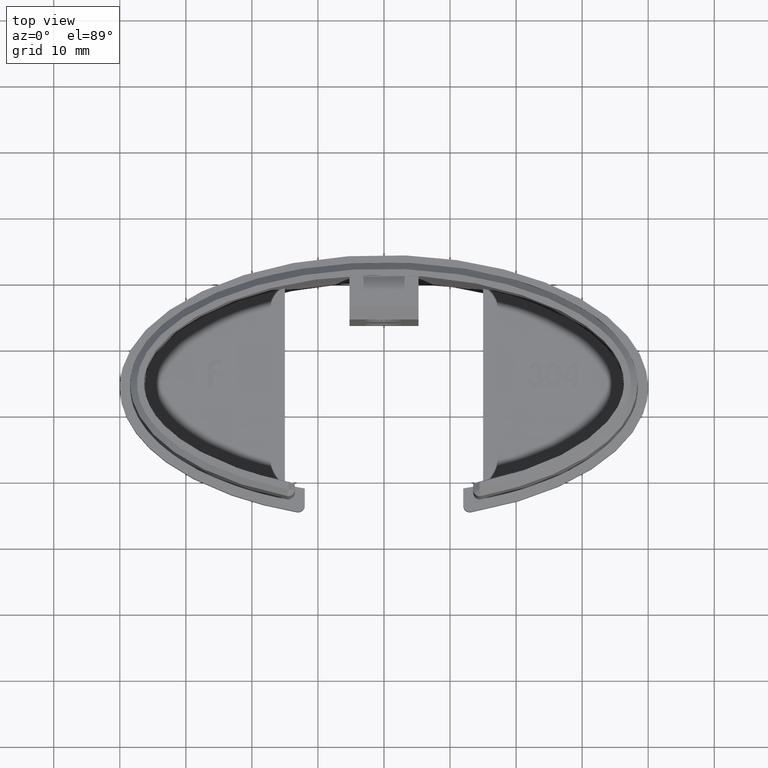
[diagram: clean part render]
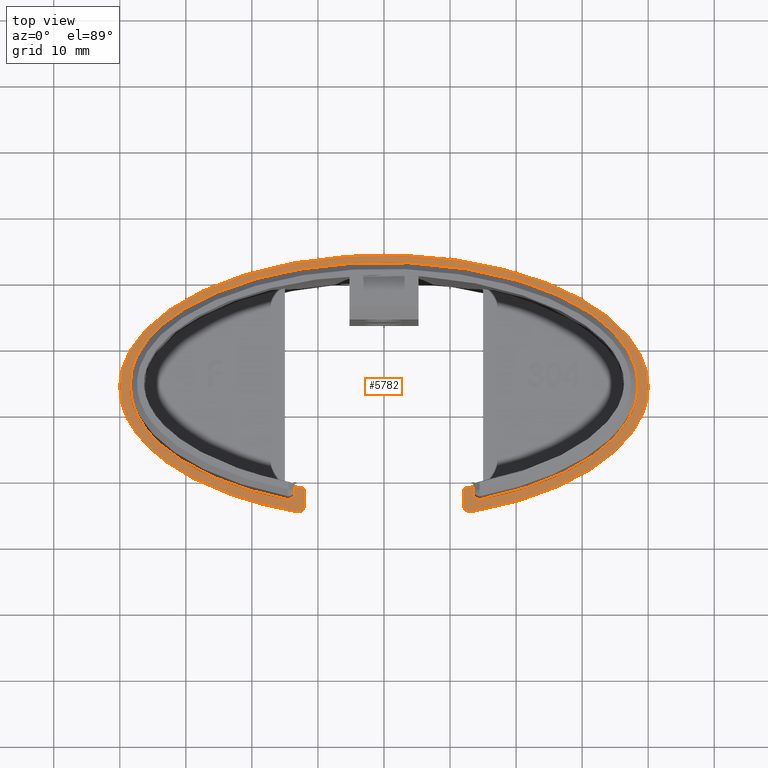
[diagram: same view with one face highlighted and labeled with its STEP entity id]
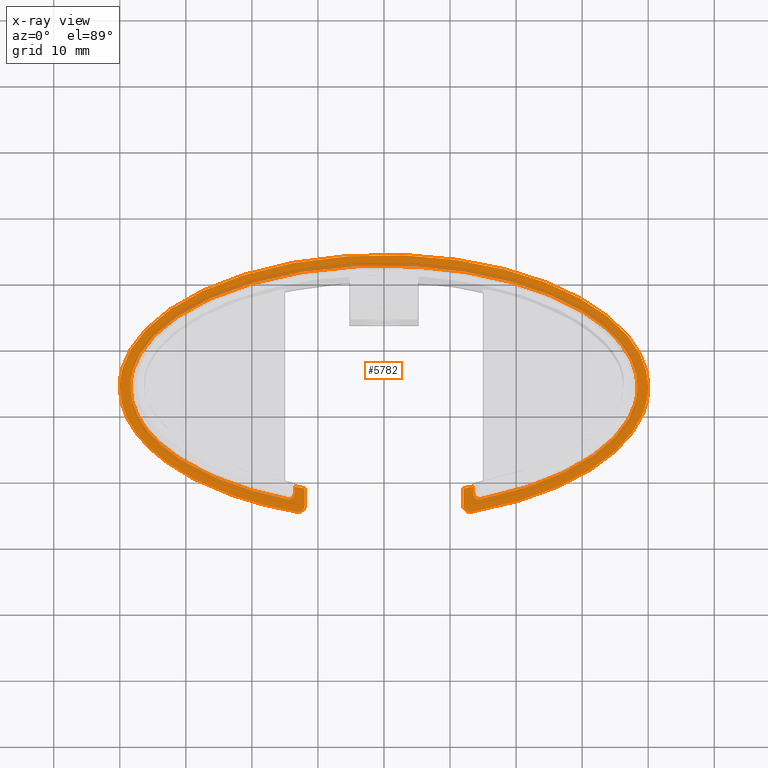
[diagram: x-ray of the same camera — body ghosted, the highlighted face saturated]
A machine part, top view. The second image highlights one B-rep face of the part: STEP entity #5782.
The next image is the same camera in x-ray: the body ghosted, the highlighted face saturated — about 15% of this face is hidden behind the body in this view.
In plain terms, the highlighted planar face has unit normal (0, 0, 1).
Its self-contained STEP definition (entity closure, byte-faithful):
#55 = ORIENTED_EDGE ( 'NONE', *, *, #288, .F. ) ;
#199 = VECTOR ( 'NONE', #26029, 1000.000000000000000 ) ;
#209 = VERTEX_POINT ( 'NONE', #10542 ) ;
#288 = EDGE_CURVE ( 'NONE', #209, #13076, #18841, .T. ) ;
#326 = CARTESIAN_POINT ( 'NONE',  ( 14.50000000000000711, -22.11917878559854955, 2.999999999999999112 ) ) ;
#363 = CARTESIAN_POINT ( 'NONE',  ( -11.99999999999999112, -24.00000000000000355, 3.000000000000000000 ) ) ;
#624 = CARTESIAN_POINT ( 'NONE',  ( 13.00000000000015454, -24.00000000000000000, 3.000000000000000000 ) ) ;
#732 = CIRCLE ( 'NONE', #20151, 1.000000000000148326 ) ;
#850 = LINE ( 'NONE', #25780, #199 ) ;
#890 = CARTESIAN_POINT ( 'NONE',  ( 29.80116491168281456, -22.08542813419998296, 3.000000000000000000 ) ) ;
#980 = CIRCLE ( 'NONE', #17990, 1.000000000000148326 ) ;
#999 = EDGE_CURVE ( 'NONE', #19618, #20914, #5347, .T. ) ;
#1694 = CARTESIAN_POINT ( 'NONE',  ( -14.50000000000002132, -22.11917878559854955, 2.999999999999999112 ) ) ;
#1988 = EDGE_CURVE ( 'NONE', #5382, #24176, #8672, .T. ) ;
#1989 = CARTESIAN_POINT ( 'NONE',  ( 38.40000000000000568, -6.100589991148868130, 3.000000000000000000 ) ) ;
#2126 = LINE ( 'NONE', #19622, #17185 ) ;
#2283 = VERTEX_POINT ( 'NONE', #18656 ) ;
#2328 = LINE ( 'NONE', #24012, #10411 ) ;
#2567 = CARTESIAN_POINT ( 'NONE',  ( 40.00000000000000000, -14.90640670414434332, 3.000000000000000000 ) ) ;
#2594 = VECTOR ( 'NONE', #9758, 1000.000000000000000 ) ;
#2993 = DIRECTION ( 'NONE',  ( 0.000000000000000000, 0.000000000000000000, 1.000000000000000000 ) ) ;
#3374 = ORIENTED_EDGE ( 'NONE', *, *, #16712, .T. ) ;
#3731 = CARTESIAN_POINT ( 'NONE',  ( 38.39999999999999858, 30.69941000885112459, 3.000000000000000444 ) ) ;
#3882 = ORIENTED_EDGE ( 'NONE', *, *, #21840, .F. ) ;
#4313 = ORIENTED_EDGE ( 'NONE', *, *, #12327, .T. ) ;
#4362 = CARTESIAN_POINT ( 'NONE',  ( 13.50000000000000178, -21.18682985904735006, 3.000000000000000000 ) ) ;
#4481 = CIRCLE ( 'NONE', #9079, 0.9999999999999991118 ) ;
#4732 = ORIENTED_EDGE ( 'NONE', *, *, #20004, .T. ) ;
#4978 = ORIENTED_EDGE ( 'NONE', *, *, #1988, .T. ) ;
#5093 = VERTEX_POINT ( 'NONE', #18358 ) ;
#5308 = CARTESIAN_POINT ( 'NONE',  ( -13.49999999999999822, -21.18682985904737137, 3.000000000000000000 ) ) ;
#5347 =( BOUNDED_CURVE ( )  B_SPLINE_CURVE ( 3, ( #1989, #3731, #16010, #18054 ),
 .UNSPECIFIED., .F., .F. ) 
 B_SPLINE_CURVE_WITH_KNOTS ( ( 4, 4 ),
 ( 4.186804226928773713E-32, 3.141592653589793116 ),
 .UNSPECIFIED. ) 
 CURVE ( )  GEOMETRIC_REPRESENTATION_ITEM ( )  RATIONAL_B_SPLINE_CURVE ( ( 1.000000000000000000, 0.3333333333333333703, 0.3333333333333333703, 1.000000000000000000 ) ) 
 REPRESENTATION_ITEM ( '' )  );
#5382 = VERTEX_POINT ( 'NONE', #14693 ) ;
#5782 = ADVANCED_FACE ( 'NONE', ( #23906 ), #20549, .T. ) ;
#5895 = CARTESIAN_POINT ( 'NONE',  ( -14.69467431645661648, -23.10004672294391881, 3.000000000000000000 ) ) ;
#6035 = DIRECTION ( 'NONE',  ( 1.000000000000000000, 0.000000000000000000, 0.000000000000000000 ) ) ;
#6247 = EDGE_LOOP ( 'NONE', ( #55, #7979, #17743, #4978, #8339, #4313, #4732, #26021, #16839, #7424, #3374, #25788, #23664, #3882, #12767, #10042 ) ) ;
#6456 = CARTESIAN_POINT ( 'NONE',  ( -11.99999999999999112, -21.44748970597751736, 3.000000000000000000 ) ) ;
#6836 = CARTESIAN_POINT ( 'NONE',  ( 12.00000000000000533, -21.44748970602631033, 3.000000000000000000 ) ) ;
#7078 = CARTESIAN_POINT ( 'NONE',  ( 12.49620549681277737, -21.36739941547843102, 2.999999999999999112 ) ) ;
#7306 = CARTESIAN_POINT ( 'NONE',  ( -12.99772371624742462, -21.28022930408711488, 2.999999999999999112 ) ) ;
#7424 = ORIENTED_EDGE ( 'NONE', *, *, #11426, .T. ) ;
#7783 = VERTEX_POINT ( 'NONE', #11959 ) ;
#7802 = EDGE_CURVE ( 'NONE', #20914, #2283, #23253, .T. ) ;
#7853 = LINE ( 'NONE', #21844, #2594 ) ;
#7959 = DIRECTION ( 'NONE',  ( 2.891205793294678326E-16, -1.000000000000000000, 0.000000000000000000 ) ) ;
#7979 = ORIENTED_EDGE ( 'NONE', *, *, #9703, .T. ) ;
#8285 = VERTEX_POINT ( 'NONE', #363 ) ;
#8339 = ORIENTED_EDGE ( 'NONE', *, *, #11980, .T. ) ;
#8672 =( BOUNDED_CURVE ( )  B_SPLINE_CURVE ( 3, ( #16680, #890, #2567, #16771 ),
 .UNSPECIFIED., .F., .F. ) 
 B_SPLINE_CURVE_WITH_KNOTS ( ( 4, 4 ),
 ( 5.047945299094942051, 6.283185307179586232 ),
 .UNSPECIFIED. ) 
 CURVE ( )  GEOMETRIC_REPRESENTATION_ITEM ( )  RATIONAL_B_SPLINE_CURVE ( ( 1.000000000000000000, 0.8768393410884840478, 0.8768393410884840478, 1.000000000000000000 ) ) 
 REPRESENTATION_ITEM ( '' )  );
#8807 = CARTESIAN_POINT ( 'NONE',  ( 4.318800475254920995E-15, -6.100589991148873459, 3.000000000000000000 ) ) ;
#9079 = AXIS2_PLACEMENT_3D ( 'NONE', #1694, #11614, #9692 ) ;
#9156 = VERTEX_POINT ( 'NONE', #13483 ) ;
#9333 = VERTEX_POINT ( 'NONE', #18856 ) ;
#9499 =( BOUNDED_CURVE ( )  B_SPLINE_CURVE ( 3, ( #25311, #25135, #19212, #15436 ),
 .UNSPECIFIED., .F., .T. ) 
 B_SPLINE_CURVE_WITH_KNOTS ( ( 4, 4 ),
 ( 3.141592653589793116, 4.376832661674438185 ),
 .UNSPECIFIED. ) 
 CURVE ( )  GEOMETRIC_REPRESENTATION_ITEM ( )  RATIONAL_B_SPLINE_CURVE ( ( 1.000000000000000000, 0.8768393410884838257, 0.8768393410884838257, 1.000000000000000000 ) ) 
 REPRESENTATION_ITEM ( '' )  );
#9688 = CARTESIAN_POINT ( 'NONE',  ( 38.39999999999999858, -13.77826740367121694, 2.999999999999999556 ) ) ;
#9692 = DIRECTION ( 'NONE',  ( 1.000000000000000000, -3.469446951953617344E-15, 0.000000000000000000 ) ) ;
#9703 = EDGE_CURVE ( 'NONE', #209, #9156, #2126, .T. ) ;
#9758 = DIRECTION ( 'NONE',  ( -2.891205793294678326E-16, 1.000000000000000000, -0.000000000000000000 ) ) ;
#9769 = CARTESIAN_POINT ( 'NONE',  ( 14.69467431645661293, -23.10004672294391881, 3.000000000000000000 ) ) ;
#9905 = CARTESIAN_POINT ( 'NONE',  ( -38.39999999999999147, -6.100589991148875235, 3.000000000000000000 ) ) ;
#10042 = ORIENTED_EDGE ( 'NONE', *, *, #16270, .F. ) ;
#10411 = VECTOR ( 'NONE', #11881, 1000.000000000000000 ) ;
#10542 = CARTESIAN_POINT ( 'NONE',  ( 12.00000000000000533, -21.44748970602631033, 3.000000000000000000 ) ) ;
#11320 = AXIS2_PLACEMENT_3D ( 'NONE', #8807, #2993, #17034 ) ;
#11426 = EDGE_CURVE ( 'NONE', #13016, #9333, #850, .T. ) ;
#11614 = DIRECTION ( 'NONE',  ( -0.000000000000000000, -0.000000000000000000, -1.000000000000000000 ) ) ;
#11802 = CARTESIAN_POINT ( 'NONE',  ( -29.49804047617537606, -20.16200065305248046, 2.999999999999999556 ) ) ;
#11881 = DIRECTION ( 'NONE',  ( 1.391388712576574087E-15, -1.000000000000000000, 0.000000000000000000 ) ) ;
#11959 = CARTESIAN_POINT ( 'NONE',  ( 13.50000000000000355, -22.11917878559854955, 3.000000000000000000 ) ) ;
#11980 = EDGE_CURVE ( 'NONE', #24176, #19421, #14163, .T. ) ;
#12179 = DIRECTION ( 'NONE',  ( -0.000000000000000000, -0.000000000000000000, -1.000000000000000000 ) ) ;
#12327 = EDGE_CURVE ( 'NONE', #19421, #14712, #9499, .T. ) ;
#12387 = CARTESIAN_POINT ( 'NONE',  ( -13.17178048386952582, -24.98513525231914301, 3.000000000000000000 ) ) ;
#12744 = VERTEX_POINT ( 'NONE', #6456 ) ;
#12767 = ORIENTED_EDGE ( 'NONE', *, *, #15373, .T. ) ;
#12922 = AXIS2_PLACEMENT_3D ( 'NONE', #326, #12179, #6035 ) ;
#13016 = VERTEX_POINT ( 'NONE', #5308 ) ;
#13036 = CARTESIAN_POINT ( 'NONE',  ( 39.99999999999999289, 33.89941000885112743, 3.000000000000000444 ) ) ;
#13076 = VERTEX_POINT ( 'NONE', #4362 ) ;
#13262 = CARTESIAN_POINT ( 'NONE',  ( -13.49999999999999822, -21.18682985904737137, 3.000000000000000000 ) ) ;
#13483 = CARTESIAN_POINT ( 'NONE',  ( 12.00000000000000533, -24.00000000000000000, 3.000000000000000000 ) ) ;
#13628 = CARTESIAN_POINT ( 'NONE',  ( 40.00000000000000000, -6.100589991148868130, 3.000000000000000000 ) ) ;
#14163 =( BOUNDED_CURVE ( )  B_SPLINE_CURVE ( 3, ( #17046, #13036, #26005, #18178 ),
 .UNSPECIFIED., .F., .T. ) 
 B_SPLINE_CURVE_WITH_KNOTS ( ( 4, 4 ),
 ( 0.000000000000000000, 3.141592653589793116 ),
 .UNSPECIFIED. ) 
 CURVE ( )  GEOMETRIC_REPRESENTATION_ITEM ( )  RATIONAL_B_SPLINE_CURVE ( ( 1.000000000000000000, 0.3333333333333333703, 0.3333333333333333703, 1.000000000000000000 ) ) 
 REPRESENTATION_ITEM ( '' )  );
#14693 = CARTESIAN_POINT ( 'NONE',  ( 13.17178048386955780, -24.98513525231913590, 3.000000000000000000 ) ) ;
#14712 = VERTEX_POINT ( 'NONE', #12387 ) ;
#15373 = EDGE_CURVE ( 'NONE', #5093, #7783, #25317, .T. ) ;
#15436 = CARTESIAN_POINT ( 'NONE',  ( -13.17178048386952582, -24.98513525231914301, 3.000000000000000000 ) ) ;
#15751 = EDGE_CURVE ( 'NONE', #13016, #12744, #15871, .T. ) ;
#15871 = B_SPLINE_CURVE_WITH_KNOTS ( 'NONE', 3,
 ( #13262, #7306, #25635, #21657 ),
 .UNSPECIFIED., .F., .F.,
 ( 4, 4 ),
 ( 4.342308403679047579, 4.386109867426725373 ),
 .UNSPECIFIED. ) ;
#16010 = CARTESIAN_POINT ( 'NONE',  ( -38.39999999999998437, 30.69941000885112103, 3.000000000000000444 ) ) ;
#16220 = CARTESIAN_POINT ( 'NONE',  ( -39.99999999999998579, -6.100589991148875235, 3.000000000000000000 ) ) ;
#16270 = EDGE_CURVE ( 'NONE', #13076, #7783, #2328, .T. ) ;
#16680 = CARTESIAN_POINT ( 'NONE',  ( 13.17178048386955780, -24.98513525231913590, 3.000000000000000000 ) ) ;
#16712 = EDGE_CURVE ( 'NONE', #9333, #2283, #4481, .T. ) ;
#16771 = CARTESIAN_POINT ( 'NONE',  ( 40.00000000000000000, -6.100589991148868130, 3.000000000000000000 ) ) ;
#16839 = ORIENTED_EDGE ( 'NONE', *, *, #15751, .F. ) ;
#17034 = DIRECTION ( 'NONE',  ( 1.000000000000000000, 0.000000000000000000, -0.000000000000000000 ) ) ;
#17046 = CARTESIAN_POINT ( 'NONE',  ( 40.00000000000000000, -6.100589991148868130, 3.000000000000000000 ) ) ;
#17185 = VECTOR ( 'NONE', #7959, 1000.000000000000000 ) ;
#17743 = ORIENTED_EDGE ( 'NONE', *, *, #17952, .T. ) ;
#17938 = CARTESIAN_POINT ( 'NONE',  ( -38.39999999999999147, -6.100589991148875235, 3.000000000000000000 ) ) ;
#17952 = EDGE_CURVE ( 'NONE', #9156, #5382, #732, .T. ) ;
#17990 = AXIS2_PLACEMENT_3D ( 'NONE', #22510, #20287, #18378 ) ;
#18054 = CARTESIAN_POINT ( 'NONE',  ( -38.39999999999999147, -6.100589991148875235, 3.000000000000000000 ) ) ;
#18178 = CARTESIAN_POINT ( 'NONE',  ( -39.99999999999998579, -6.100589991148875235, 3.000000000000000000 ) ) ;
#18358 = CARTESIAN_POINT ( 'NONE',  ( 14.69467431645661293, -23.10004672294391881, 3.000000000000000000 ) ) ;
#18378 = DIRECTION ( 'NONE',  ( -1.000000000000000000, 0.000000000000000000, 0.000000000000000000 ) ) ;
#18457 = EDGE_CURVE ( 'NONE', #8285, #12744, #7853, .T. ) ;
#18656 = CARTESIAN_POINT ( 'NONE',  ( -14.69467431645661648, -23.10004672294391881, 3.000000000000000000 ) ) ;
#18790 = DIRECTION ( 'NONE',  ( -1.000000000000000000, 0.000000000000000000, 0.000000000000000000 ) ) ;
#18841 = B_SPLINE_CURVE_WITH_KNOTS ( 'NONE', 3,
 ( #6836, #7078, #18972, #21152 ),
 .UNSPECIFIED., .F., .F.,
 ( 4, 4 ),
 ( -1.244517213493177454, -1.200715749749045047 ),
 .UNSPECIFIED. ) ;
#18856 = CARTESIAN_POINT ( 'NONE',  ( -13.50000000000000000, -22.11917878559855311, 3.000000000000000000 ) ) ;
#18972 = CARTESIAN_POINT ( 'NONE',  ( 12.99772371626123757, -21.28022930409530744, 2.999999999999999112 ) ) ;
#19212 = CARTESIAN_POINT ( 'NONE',  ( -29.80116491168280746, -22.08542813420000073, 3.000000000000000444 ) ) ;
#19421 = VERTEX_POINT ( 'NONE', #16220 ) ;
#19618 = VERTEX_POINT ( 'NONE', #25487 ) ;
#19622 = CARTESIAN_POINT ( 'NONE',  ( 11.99999999999999822, 0.000000000000000000, 3.000000000000000000 ) ) ;
#20004 = EDGE_CURVE ( 'NONE', #14712, #8285, #980, .T. ) ;
#20103 = CARTESIAN_POINT ( 'NONE',  ( -38.39999999999998437, -13.77826740367122582, 2.999999999999999556 ) ) ;
#20151 = AXIS2_PLACEMENT_3D ( 'NONE', #624, #20713, #18790 ) ;
#20287 = DIRECTION ( 'NONE',  ( 0.000000000000000000, 0.000000000000000000, 1.000000000000000000 ) ) ;
#20549 = PLANE ( 'NONE',  #11320 ) ;
#20713 = DIRECTION ( 'NONE',  ( 0.000000000000000000, 0.000000000000000000, 1.000000000000000000 ) ) ;
#20914 = VERTEX_POINT ( 'NONE', #9905 ) ;
#21152 = CARTESIAN_POINT ( 'NONE',  ( 13.50000000000000178, -21.18682985904735006, 3.000000000000000000 ) ) ;
#21657 = CARTESIAN_POINT ( 'NONE',  ( -11.99999999999999112, -21.44748970597751736, 3.000000000000000000 ) ) ;
#21840 = EDGE_CURVE ( 'NONE', #5093, #19618, #24704, .T. ) ;
#21844 = CARTESIAN_POINT ( 'NONE',  ( -11.99999999999999822, 0.000000000000000000, 3.000000000000000000 ) ) ;
#22028 = CARTESIAN_POINT ( 'NONE',  ( 29.49804047617537606, -20.16200065305248046, 2.999999999999999556 ) ) ;
#22510 = CARTESIAN_POINT ( 'NONE',  ( -13.00000000000014033, -24.00000000000000355, 3.000000000000000000 ) ) ;
#23253 =( BOUNDED_CURVE ( )  B_SPLINE_CURVE ( 3, ( #17938, #20103, #11802, #5895 ),
 .UNSPECIFIED., .F., .T. ) 
 B_SPLINE_CURVE_WITH_KNOTS ( ( 4, 4 ),
 ( 3.141592653589793116, 4.319700313485304477 ),
 .UNSPECIFIED. ) 
 CURVE ( )  GEOMETRIC_REPRESENTATION_ITEM ( )  RATIONAL_B_SPLINE_CURVE ( ( 1.000000000000000000, 0.8876444794766826796, 0.8876444794766826796, 1.000000000000000000 ) ) 
 REPRESENTATION_ITEM ( '' )  );
#23664 = ORIENTED_EDGE ( 'NONE', *, *, #999, .F. ) ;
#23895 = CARTESIAN_POINT ( 'NONE',  ( 38.40000000000000568, -6.100589991148868130, 3.000000000000000000 ) ) ;
#23906 = FACE_OUTER_BOUND ( 'NONE', #6247, .T. ) ;
#24012 = CARTESIAN_POINT ( 'NONE',  ( 13.49999999999997158, 1.878374761978371368E-14, 3.000000000000000000 ) ) ;
#24176 = VERTEX_POINT ( 'NONE', #13628 ) ;
#24704 =( BOUNDED_CURVE ( )  B_SPLINE_CURVE ( 3, ( #9769, #22028, #9688, #23895 ),
 .UNSPECIFIED., .F., .F. ) 
 B_SPLINE_CURVE_WITH_KNOTS ( ( 4, 4 ),
 ( 5.105077647284074871, 6.283185307179586232 ),
 .UNSPECIFIED. ) 
 CURVE ( )  GEOMETRIC_REPRESENTATION_ITEM ( )  RATIONAL_B_SPLINE_CURVE ( ( 1.000000000000000000, 0.8876444794766826796, 0.8876444794766826796, 1.000000000000000000 ) ) 
 REPRESENTATION_ITEM ( '' )  );
#25135 = CARTESIAN_POINT ( 'NONE',  ( -39.99999999999999289, -14.90640670414435931, 3.000000000000000444 ) ) ;
#25311 = CARTESIAN_POINT ( 'NONE',  ( -39.99999999999998579, -6.100589991148875235, 3.000000000000000000 ) ) ;
#25317 = CIRCLE ( 'NONE', #12922, 0.9999999999999991118 ) ;
#25487 = CARTESIAN_POINT ( 'NONE',  ( 38.40000000000000568, -6.100589991148868130, 3.000000000000000000 ) ) ;
#25635 = CARTESIAN_POINT ( 'NONE',  ( -12.49620549681965009, -21.36739941545426902, 2.999999999999999112 ) ) ;
#25780 = CARTESIAN_POINT ( 'NONE',  ( -13.49999999999993960, 3.756749523956754728E-14, 3.000000000000000000 ) ) ;
#25788 = ORIENTED_EDGE ( 'NONE', *, *, #7802, .F. ) ;
#26005 = CARTESIAN_POINT ( 'NONE',  ( -39.99999999999997868, 33.89941000885112032, 3.000000000000000444 ) ) ;
#26021 = ORIENTED_EDGE ( 'NONE', *, *, #18457, .T. ) ;
#26029 = DIRECTION ( 'NONE',  ( -2.782777425153164345E-15, -1.000000000000000000, 0.000000000000000000 ) ) ;